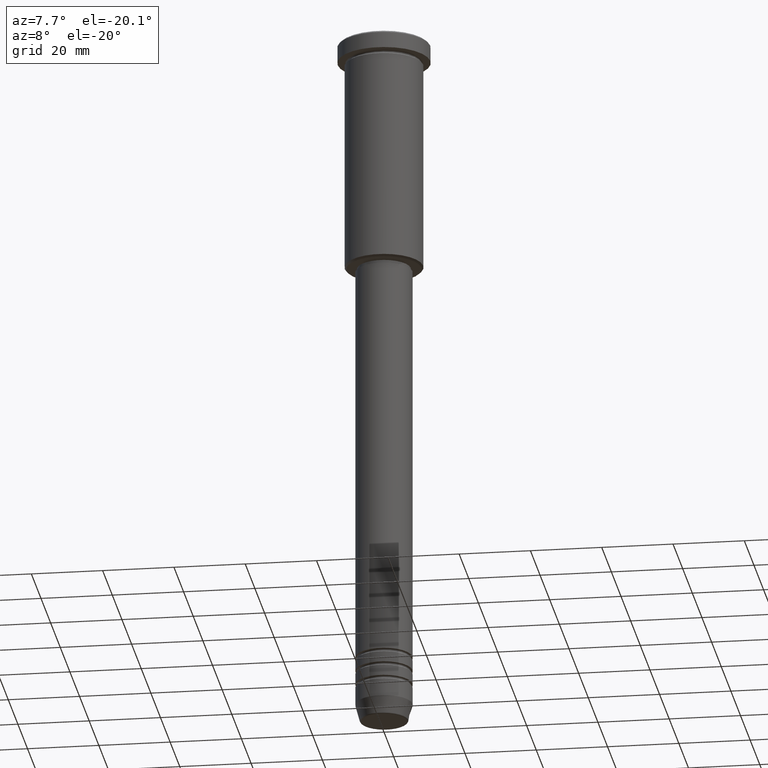
[diagram: clean part render]
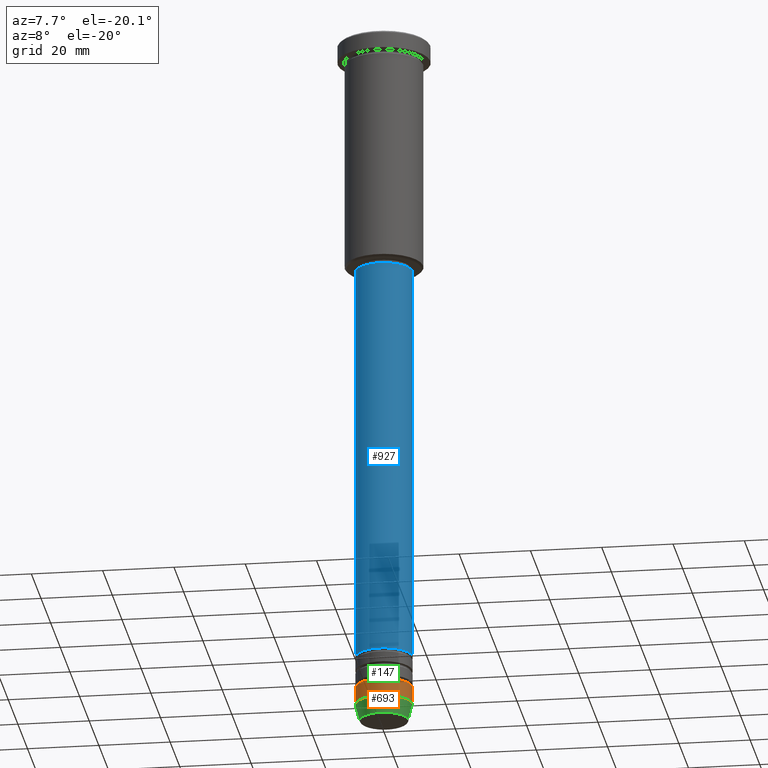
[diagram: same view with three faces highlighted in distinct colors, each labeled with its STEP entity id]
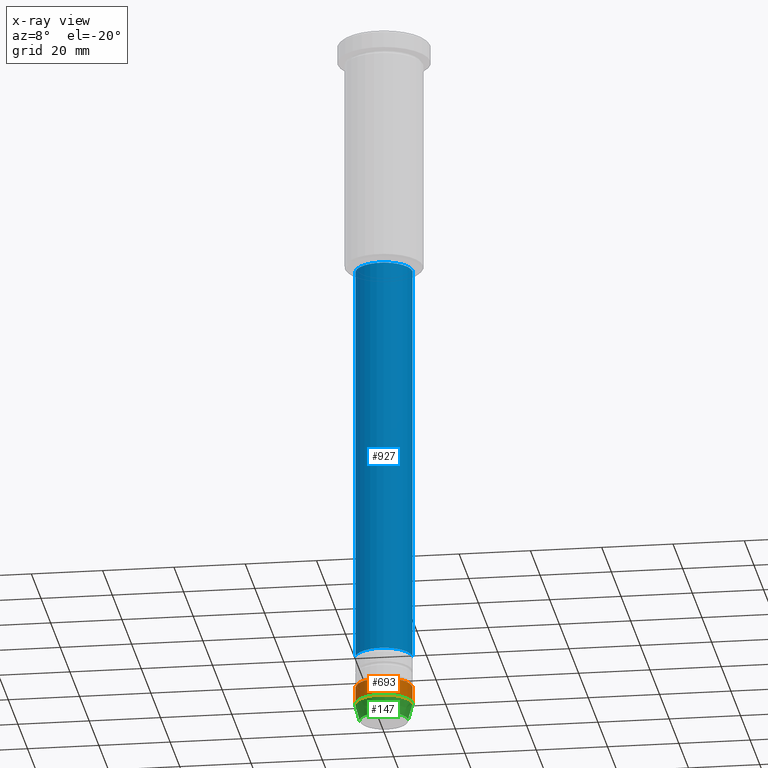
[diagram: x-ray of the same camera — body ghosted, the three highlighted faces saturated]
A machine part, auxiliary view with three faces highlighted in distinct colors.
The next image is the same camera in x-ray (body ghosted, the three faces saturated) — at least one of them is partly hidden behind the body in this view.
Their STEP definitions:

[orange] entity #693 — the highlighted cylindrical surface (edge-blend (fillet) strip) has radius 8 mm, axis along (-0, -0, 1).
#69 = LINE ( 'NONE', #161, #711 ) ;
#77 = CIRCLE ( 'NONE', #749, 8.000000000000000000 ) ;
#113 = VERTEX_POINT ( 'NONE', #614 ) ;
#143 = EDGE_CURVE ( 'NONE', #776, #997, #1061, .T. ) ;
#161 = CARTESIAN_POINT ( 'NONE',  ( -8.000000000000000000, 9.797174393178825657E-16, 0.000000000000000000 ) ) ;
#174 = DIRECTION ( 'NONE',  ( -0.000000000000000000, -0.000000000000000000, 1.000000000000000000 ) ) ;
#219 = ORIENTED_EDGE ( 'NONE', *, *, #480, .F. ) ;
#261 = DIRECTION ( 'NONE',  ( -0.000000000000000000, -0.000000000000000000, 1.000000000000000000 ) ) ;
#357 = CYLINDRICAL_SURFACE ( 'NONE', #402, 8.000000000000000000 ) ;
#402 = AXIS2_PLACEMENT_3D ( 'NONE', #626, #174, #619 ) ;
#410 = EDGE_CURVE ( 'NONE', #113, #794, #69, .T. ) ;
#480 = EDGE_CURVE ( 'NONE', #794, #997, #77, .T. ) ;
#504 = EDGE_CURVE ( 'NONE', #113, #776, #949, .T. ) ;
#590 = ORIENTED_EDGE ( 'NONE', *, *, #410, .F. ) ;
#605 = CARTESIAN_POINT ( 'NONE',  ( 8.000000000000000000, 0.000000000000000000, 0.000000000000000000 ) ) ;
#614 = CARTESIAN_POINT ( 'NONE',  ( -8.000000000000000000, 9.797174393178825657E-16, -195.0000000000000284 ) ) ;
#619 = DIRECTION ( 'NONE',  ( 1.000000000000000000, 0.000000000000000000, 0.000000000000000000 ) ) ;
#626 = CARTESIAN_POINT ( 'NONE',  ( 0.000000000000000000, 0.000000000000000000, 0.000000000000000000 ) ) ;
#646 = CARTESIAN_POINT ( 'NONE',  ( 0.000000000000000000, 0.000000000000000000, -195.0000000000000284 ) ) ;
#649 = ORIENTED_EDGE ( 'NONE', *, *, #504, .T. ) ;
#650 = DIRECTION ( 'NONE',  ( -0.000000000000000000, -0.000000000000000000, 1.000000000000000000 ) ) ;
#652 = VECTOR ( 'NONE', #972, 1000.000000000000000 ) ;
#693 = ADVANCED_FACE ( 'NONE', ( #805 ), #357, .T. ) ;
#711 = VECTOR ( 'NONE', #261, 1000.000000000000000 ) ;
#743 = DIRECTION ( 'NONE',  ( 1.000000000000000000, 0.000000000000000000, 0.000000000000000000 ) ) ;
#745 = ORIENTED_EDGE ( 'NONE', *, *, #143, .T. ) ;
#749 = AXIS2_PLACEMENT_3D ( 'NONE', #921, #825, #1097 ) ;
#776 = VERTEX_POINT ( 'NONE', #859 ) ;
#794 = VERTEX_POINT ( 'NONE', #1177 ) ;
#805 = FACE_OUTER_BOUND ( 'NONE', #1099, .T. ) ;
#825 = DIRECTION ( 'NONE',  ( -0.000000000000000000, -0.000000000000000000, 1.000000000000000000 ) ) ;
#859 = CARTESIAN_POINT ( 'NONE',  ( 8.000000000000000000, 0.000000000000000000, -195.0000000000000284 ) ) ;
#913 = AXIS2_PLACEMENT_3D ( 'NONE', #646, #650, #743 ) ;
#921 = CARTESIAN_POINT ( 'NONE',  ( 0.000000000000000000, 0.000000000000000000, -190.0000000000000284 ) ) ;
#949 = CIRCLE ( 'NONE', #913, 8.000000000000000000 ) ;
#972 = DIRECTION ( 'NONE',  ( -0.000000000000000000, -0.000000000000000000, 1.000000000000000000 ) ) ;
#997 = VERTEX_POINT ( 'NONE', #1142 ) ;
#1061 = LINE ( 'NONE', #605, #652 ) ;
#1097 = DIRECTION ( 'NONE',  ( 1.000000000000000000, 0.000000000000000000, 0.000000000000000000 ) ) ;
#1099 = EDGE_LOOP ( 'NONE', ( #590, #649, #745, #219 ) ) ;
#1142 = CARTESIAN_POINT ( 'NONE',  ( 8.000000000000000000, 0.000000000000000000, -190.0000000000000284 ) ) ;
#1177 = CARTESIAN_POINT ( 'NONE',  ( -8.000000000000000000, 9.797174393178825657E-16, -190.0000000000000284 ) ) ;

[blue] entity #927 — the highlighted cylindrical surface (edge-blend (fillet) strip) has radius 8 mm, axis along (-0, -0, 1).
#29 = CARTESIAN_POINT ( 'NONE',  ( 8.000000000000000000, 0.000000000000000000, 0.000000000000000000 ) ) ;
#89 = ORIENTED_EDGE ( 'NONE', *, *, #950, .T. ) ;
#132 = VERTEX_POINT ( 'NONE', #698 ) ;
#133 = AXIS2_PLACEMENT_3D ( 'NONE', #454, #591, #460 ) ;
#137 = CARTESIAN_POINT ( 'NONE',  ( 8.000000000000000000, 0.000000000000000000, -67.00000000000002842 ) ) ;
#159 = DIRECTION ( 'NONE',  ( 1.000000000000000000, 0.000000000000000000, 0.000000000000000000 ) ) ;
#188 = CARTESIAN_POINT ( 'NONE',  ( -8.000000000000000000, 9.797174393178825657E-16, 0.000000000000000000 ) ) ;
#197 = AXIS2_PLACEMENT_3D ( 'NONE', #883, #793, #979 ) ;
#232 = EDGE_CURVE ( 'NONE', #434, #1054, #849, .T. ) ;
#233 = VECTOR ( 'NONE', #294, 1000.000000000000000 ) ;
#276 = AXIS2_PLACEMENT_3D ( 'NONE', #283, #469, #159 ) ;
#283 = CARTESIAN_POINT ( 'NONE',  ( 0.000000000000000000, 0.000000000000000000, -67.00000000000002842 ) ) ;
#294 = DIRECTION ( 'NONE',  ( -0.000000000000000000, -0.000000000000000000, 1.000000000000000000 ) ) ;
#311 = ORIENTED_EDGE ( 'NONE', *, *, #232, .T. ) ;
#434 = VERTEX_POINT ( 'NONE', #816 ) ;
#449 = VERTEX_POINT ( 'NONE', #1007 ) ;
#454 = CARTESIAN_POINT ( 'NONE',  ( 0.000000000000000000, 0.000000000000000000, -181.0000000000000284 ) ) ;
#458 = DIRECTION ( 'NONE',  ( -0.000000000000000000, -0.000000000000000000, 1.000000000000000000 ) ) ;
#460 = DIRECTION ( 'NONE',  ( 1.000000000000000000, 0.000000000000000000, 0.000000000000000000 ) ) ;
#469 = DIRECTION ( 'NONE',  ( -0.000000000000000000, -0.000000000000000000, 1.000000000000000000 ) ) ;
#514 = EDGE_LOOP ( 'NONE', ( #593, #89, #311, #992 ) ) ;
#591 = DIRECTION ( 'NONE',  ( -0.000000000000000000, -0.000000000000000000, 1.000000000000000000 ) ) ;
#593 = ORIENTED_EDGE ( 'NONE', *, *, #981, .F. ) ;
#641 = VECTOR ( 'NONE', #458, 1000.000000000000000 ) ;
#695 = FACE_OUTER_BOUND ( 'NONE', #514, .T. ) ;
#698 = CARTESIAN_POINT ( 'NONE',  ( -8.000000000000000000, 9.797174393178825657E-16, -181.0000000000000284 ) ) ;
#732 = LINE ( 'NONE', #188, #641 ) ;
#792 = CIRCLE ( 'NONE', #276, 8.000000000000000000 ) ;
#793 = DIRECTION ( 'NONE',  ( -0.000000000000000000, -0.000000000000000000, 1.000000000000000000 ) ) ;
#816 = CARTESIAN_POINT ( 'NONE',  ( 8.000000000000000000, 0.000000000000000000, -181.0000000000000284 ) ) ;
#849 = LINE ( 'NONE', #29, #233 ) ;
#883 = CARTESIAN_POINT ( 'NONE',  ( 0.000000000000000000, 0.000000000000000000, 0.000000000000000000 ) ) ;
#927 = ADVANCED_FACE ( 'NONE', ( #695 ), #1062, .T. ) ;
#950 = EDGE_CURVE ( 'NONE', #132, #434, #1076, .T. ) ;
#962 = EDGE_CURVE ( 'NONE', #449, #1054, #792, .T. ) ;
#979 = DIRECTION ( 'NONE',  ( 1.000000000000000000, 0.000000000000000000, 0.000000000000000000 ) ) ;
#981 = EDGE_CURVE ( 'NONE', #132, #449, #732, .T. ) ;
#992 = ORIENTED_EDGE ( 'NONE', *, *, #962, .F. ) ;
#1007 = CARTESIAN_POINT ( 'NONE',  ( -8.000000000000000000, 9.797174393178825657E-16, -67.00000000000002842 ) ) ;
#1054 = VERTEX_POINT ( 'NONE', #137 ) ;
#1062 = CYLINDRICAL_SURFACE ( 'NONE', #197, 8.000000000000000000 ) ;
#1076 = CIRCLE ( 'NONE', #133, 8.000000000000000000 ) ;

[green] entity #147 — the highlighted conical surface has half-angle 15 deg.
#24 = EDGE_CURVE ( 'NONE', #1141, #113, #866, .T. ) ;
#75 = AXIS2_PLACEMENT_3D ( 'NONE', #1155, #418, #335 ) ;
#113 = VERTEX_POINT ( 'NONE', #614 ) ;
#147 = ADVANCED_FACE ( 'NONE', ( #522 ), #1015, .T. ) ;
#218 = EDGE_CURVE ( 'NONE', #1141, #570, #594, .T. ) ;
#229 = CARTESIAN_POINT ( 'NONE',  ( 8.000000000000000000, 0.000000000000000000, -195.0000000000000284 ) ) ;
#243 = DIRECTION ( 'NONE',  ( 1.000000000000000000, 0.000000000000000000, 0.000000000000000000 ) ) ;
#314 = ORIENTED_EDGE ( 'NONE', *, *, #24, .F. ) ;
#319 = EDGE_LOOP ( 'NONE', ( #314, #957, #869, #697 ) ) ;
#335 = DIRECTION ( 'NONE',  ( 1.000000000000000000, 0.000000000000000000, 0.000000000000000000 ) ) ;
#407 = LINE ( 'NONE', #229, #577 ) ;
#418 = DIRECTION ( 'NONE',  ( -0.000000000000000000, -0.000000000000000000, 1.000000000000000000 ) ) ;
#472 = AXIS2_PLACEMENT_3D ( 'NONE', #1162, #1080, #243 ) ;
#498 = DIRECTION ( 'NONE',  ( 0.2588190451025212391, 0.000000000000000000, 0.9659258262890680902 ) ) ;
#504 = EDGE_CURVE ( 'NONE', #113, #776, #949, .T. ) ;
#522 = FACE_OUTER_BOUND ( 'NONE', #319, .T. ) ;
#570 = VERTEX_POINT ( 'NONE', #857 ) ;
#577 = VECTOR ( 'NONE', #498, 1000.000000000000114 ) ;
#594 = CIRCLE ( 'NONE', #75, 6.759553456999444876 ) ;
#614 = CARTESIAN_POINT ( 'NONE',  ( -8.000000000000000000, 9.797174393178825657E-16, -195.0000000000000284 ) ) ;
#646 = CARTESIAN_POINT ( 'NONE',  ( 0.000000000000000000, 0.000000000000000000, -195.0000000000000284 ) ) ;
#650 = DIRECTION ( 'NONE',  ( -0.000000000000000000, -0.000000000000000000, 1.000000000000000000 ) ) ;
#662 = CARTESIAN_POINT ( 'NONE',  ( -6.759553456999444876, 9.037619948979310157E-16, -199.6294095225512706 ) ) ;
#668 = DIRECTION ( 'NONE',  ( -0.2588190451025212391, 3.169619151431771721E-17, 0.9659258262890680902 ) ) ;
#680 = CARTESIAN_POINT ( 'NONE',  ( -8.000000000000000000, 9.797174393178825657E-16, -195.0000000000000284 ) ) ;
#697 = ORIENTED_EDGE ( 'NONE', *, *, #504, .F. ) ;
#743 = DIRECTION ( 'NONE',  ( 1.000000000000000000, 0.000000000000000000, 0.000000000000000000 ) ) ;
#769 = VECTOR ( 'NONE', #668, 1000.000000000000114 ) ;
#776 = VERTEX_POINT ( 'NONE', #859 ) ;
#806 = EDGE_CURVE ( 'NONE', #570, #776, #407, .T. ) ;
#857 = CARTESIAN_POINT ( 'NONE',  ( 6.759553456999444876, 0.000000000000000000, -199.6294095225512706 ) ) ;
#859 = CARTESIAN_POINT ( 'NONE',  ( 8.000000000000000000, 0.000000000000000000, -195.0000000000000284 ) ) ;
#866 = LINE ( 'NONE', #680, #769 ) ;
#869 = ORIENTED_EDGE ( 'NONE', *, *, #806, .T. ) ;
#913 = AXIS2_PLACEMENT_3D ( 'NONE', #646, #650, #743 ) ;
#949 = CIRCLE ( 'NONE', #913, 8.000000000000000000 ) ;
#957 = ORIENTED_EDGE ( 'NONE', *, *, #218, .T. ) ;
#1015 = CONICAL_SURFACE ( 'NONE', #472, 8.000000000000000000, 0.2617993877991499629 ) ;
#1080 = DIRECTION ( 'NONE',  ( -0.000000000000000000, -0.000000000000000000, 1.000000000000000000 ) ) ;
#1141 = VERTEX_POINT ( 'NONE', #662 ) ;
#1155 = CARTESIAN_POINT ( 'NONE',  ( 0.000000000000000000, 0.000000000000000000, -199.6294095225512706 ) ) ;
#1162 = CARTESIAN_POINT ( 'NONE',  ( 0.000000000000000000, 0.000000000000000000, -195.0000000000000284 ) ) ;